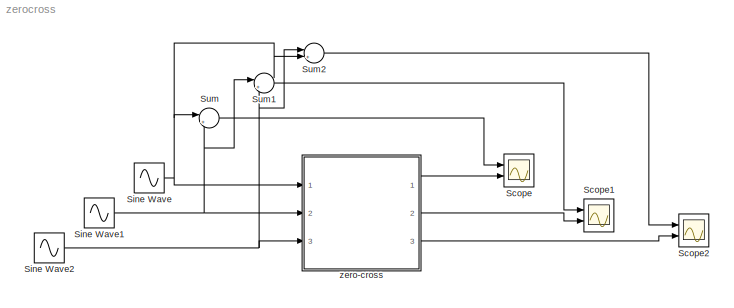
MODEL zerocross
KIND model
CONFIG AbsTol = auto
CONFIG FixedStep = auto
CONFIG MaxStep = auto
CONFIG MinStep = auto
CONFIG RelTol = 1e-3
CONFIG Solver = ode45
CONFIG SolverMode = Auto
CONFIG StartTime = 0.0
CONFIG StopTime = 10.0
BLOCK [Scope] Scope
  DataFormat = StructureWithTime
  Decimation = 1
  Floating = off
  Grid = on
  LimitDataPoints = off
  MaxDataPoints = 5000
  NumInputPorts = 2
  Ports = [2]
  SampleInput = off
  SampleTime = 0
  SaveName = ScopeData
  SaveToWorkspace = off
  TickLabels = OneTimeTick
  TimeRange = auto
  YMax = 5~5
  YMin = -5~-5
  ZoomMode = on
BLOCK [Scope] Scope1
  DataFormat = StructureWithTime
  Decimation = 1
  Floating = off
  Grid = on
  LimitDataPoints = off
  MaxDataPoints = 5000
  NumInputPorts = 2
  Ports = [2]
  SampleInput = off
  SampleTime = 0
  SaveName = ScopeData1
  SaveToWorkspace = off
  TickLabels = OneTimeTick
  TimeRange = auto
  YMax = 5~5
  YMin = -5~-5
  ZoomMode = on
BLOCK [Scope] Scope2
  DataFormat = StructureWithTime
  Decimation = 1
  Floating = off
  Grid = on
  LimitDataPoints = off
  MaxDataPoints = 5000
  NumInputPorts = 2
  Ports = [2]
  SampleInput = off
  SampleTime = 0
  SaveName = ScopeData2
  SaveToWorkspace = off
  TickLabels = OneTimeTick
  TimeRange = auto
  YMax = 5~5
  YMin = -5~-5
  ZoomMode = on
BLOCK [Sin] Sine Wave
  Amplitude = 1
  Frequency = 10
  Phase = 0
  SampleTime = 0
  VectorParams1D = on
BLOCK [Sin] Sine Wave1
  Amplitude = 1
  Frequency = 10
  Phase = 2*pi/3
  SampleTime = 0
  VectorParams1D = on
BLOCK [Sin] Sine Wave2
  Amplitude = 1
  Frequency = 10
  Phase = -2*pi/3
  SampleTime = 0
  VectorParams1D = on
BLOCK [Sum] Sum
  IconShape = round
  Inputs = |+-
  Ports = [2, 1]
  SaturateOnIntegerOverflow = on
BLOCK [Sum] Sum1
  IconShape = round
  Inputs = |+-
  Ports = [2, 1]
  SaturateOnIntegerOverflow = on
BLOCK [Sum] Sum2
  IconShape = round
  Inputs = |+-
  Ports = [2, 1]
  SaturateOnIntegerOverflow = on
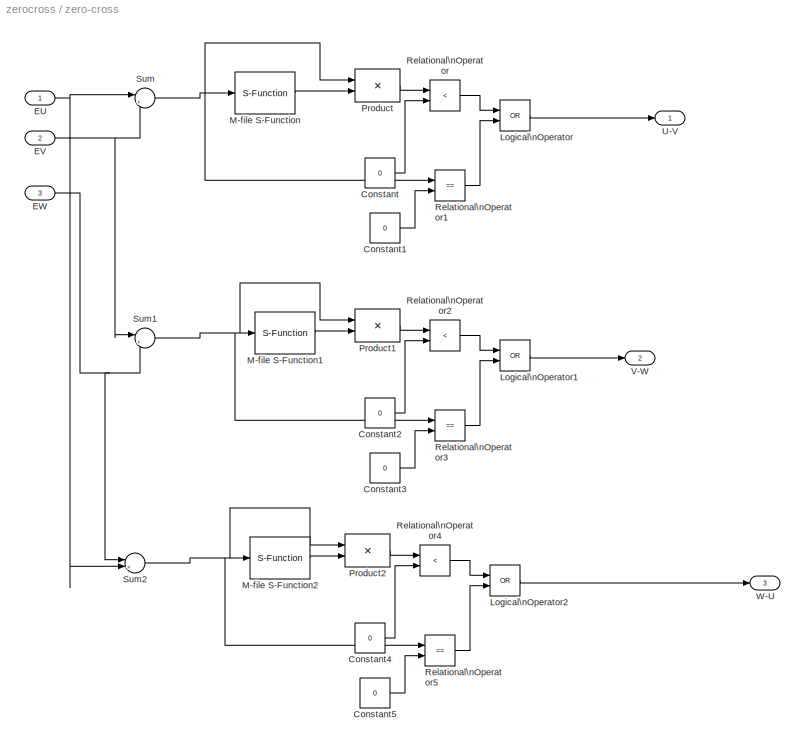
BLOCK [SubSystem] zero-cross
  MaskDescription = The block detects the zero crossing of the inputs. For accurate results use the  rising edge only.
  MaskIconFrame = on
  MaskIconOpaque = on
  MaskIconRotate = none
  MaskIconUnits = autoscale
  Ports = [3, 3]
  RTWFcnNameOpts = Auto
  RTWFileNameOpts = Auto
  RTWSystemCode = Auto
  ShowPortLabels = on
  TreatAsAtomicUnit = off
BLOCK [Constant] zero-cross/Constant
  Value = 0
  VectorParams1D = on
BLOCK [Constant] zero-cross/Constant1
  Value = 0
  VectorParams1D = on
BLOCK [Constant] zero-cross/Constant2
  Value = 0
  VectorParams1D = on
BLOCK [Constant] zero-cross/Constant3
  Value = 0
  VectorParams1D = on
BLOCK [Constant] zero-cross/Constant4
  Value = 0
  VectorParams1D = on
BLOCK [Constant] zero-cross/Constant5
  Value = 0
  VectorParams1D = on
BLOCK [Inport] zero-cross/EU
  Interpolate = on
  Port = 1
BLOCK [Inport] zero-cross/EV
  Interpolate = on
  Port = 2
BLOCK [Inport] zero-cross/EW
  Interpolate = on
  Port = 3
BLOCK [Logic] zero-cross/Logical\nOperator
  Inputs = 2
  Operator = OR
  Ports = [2, 1]
BLOCK [Logic] zero-cross/Logical\nOperator1
  Inputs = 2
  Operator = OR
  Ports = [2, 1]
BLOCK [Logic] zero-cross/Logical\nOperator2
  Inputs = 2
  Operator = OR
  Ports = [2, 1]
BLOCK [S-Function] zero-cross/M-file S-Function
  FunctionName = sfundsc2
  MaskDescription = This is a M-file S-function which demonstrates how toimplement an unit delay.
  MaskDisplay = disp('Unit delay')
  MaskIconFrame = on
  MaskIconOpaque = on
  MaskIconRotate = none
  MaskIconUnits = autoscale
  MaskType = S-function: sfun_dsc2
  PortCounts = []
  Ports = [1, 1]
  SFunctionModules = ''
BLOCK [S-Function] zero-cross/M-file S-Function1
  FunctionName = sfundsc2
  MaskDescription = This is a M-file S-function which demonstrates how toimplement an unit delay.
  MaskDisplay = disp('Unit delay')
  MaskIconFrame = on
  MaskIconOpaque = on
  MaskIconRotate = none
  MaskIconUnits = autoscale
  MaskType = S-function: sfun_dsc2
  PortCounts = []
  Ports = [1, 1]
  SFunctionModules = ''
BLOCK [S-Function] zero-cross/M-file S-Function2
  FunctionName = sfundsc2
  MaskDescription = This is a M-file S-function which demonstrates how toimplement an unit delay.
  MaskDisplay = disp('Unit delay')
  MaskIconFrame = on
  MaskIconOpaque = on
  MaskIconRotate = none
  MaskIconUnits = autoscale
  MaskType = S-function: sfun_dsc2
  PortCounts = []
  Ports = [1, 1]
  SFunctionModules = ''
BLOCK [Product] zero-cross/Product
  Inputs = 2
  Multiplication = Element-wise(.*)
  Ports = [2, 1]
  SaturateOnIntegerOverflow = on
BLOCK [Product] zero-cross/Product1
  Inputs = 2
  Multiplication = Element-wise(.*)
  Ports = [2, 1]
  SaturateOnIntegerOverflow = on
BLOCK [Product] zero-cross/Product2
  Inputs = 2
  Multiplication = Element-wise(.*)
  Ports = [2, 1]
  SaturateOnIntegerOverflow = on
BLOCK [RelationalOperator] zero-cross/Relational\nOperator
  Operator = <
BLOCK [RelationalOperator] zero-cross/Relational\nOperator1
  Operator = ==
BLOCK [RelationalOperator] zero-cross/Relational\nOperator2
  Operator = <
BLOCK [RelationalOperator] zero-cross/Relational\nOperator3
  Operator = ==
BLOCK [RelationalOperator] zero-cross/Relational\nOperator4
  Operator = <
BLOCK [RelationalOperator] zero-cross/Relational\nOperator5
  Operator = ==
BLOCK [Sum] zero-cross/Sum
  IconShape = round
  Inputs = |+-
  Ports = [2, 1]
  SaturateOnIntegerOverflow = on
BLOCK [Sum] zero-cross/Sum1
  IconShape = round
  Inputs = |+-
  Ports = [2, 1]
  SaturateOnIntegerOverflow = on
BLOCK [Sum] zero-cross/Sum2
  IconShape = round
  Inputs = |+-
  Ports = [2, 1]
  SaturateOnIntegerOverflow = on
BLOCK [Outport] zero-cross/U-V
  InitialOutput = []
  OutputWhenDisabled = held
  Port = 1
BLOCK [Outport] zero-cross/V-W
  InitialOutput = []
  OutputWhenDisabled = held
  Port = 2
BLOCK [Outport] zero-cross/W-U
  InitialOutput = []
  OutputWhenDisabled = held
  Port = 3
NET Sine Wave1:1 -> Sum1:1, Sum:2, zero-cross:2
NET Sine Wave2:1 -> Sum1:2, Sum2:1, zero-cross:3
NET Sine Wave:1 -> Sum2:2, Sum:1, zero-cross:1
LINE Sum1:1 -> Scope1:1
LINE Sum2:1 -> Scope2:1
LINE Sum:1 -> Scope:1
LINE zero-cross/Constant1:1 -> zero-cross/Relational\nOperator1:2
LINE zero-cross/Constant2:1 -> zero-cross/Relational\nOperator2:2
LINE zero-cross/Constant3:1 -> zero-cross/Relational\nOperator3:2
LINE zero-cross/Constant4:1 -> zero-cross/Relational\nOperator4:2
LINE zero-cross/Constant5:1 -> zero-cross/Relational\nOperator5:2
LINE zero-cross/Constant:1 -> zero-cross/Relational\nOperator:2
NET zero-cross/EU:1 -> zero-cross/Sum2:2, zero-cross/Sum:1
NET zero-cross/EV:1 -> zero-cross/Sum1:1, zero-cross/Sum:2
NET zero-cross/EW:1 -> zero-cross/Sum1:2, zero-cross/Sum2:1
LINE zero-cross/Logical\nOperator1:1 -> zero-cross/V-W:1
LINE zero-cross/Logical\nOperator2:1 -> zero-cross/W-U:1
LINE zero-cross/Logical\nOperator:1 -> zero-cross/U-V:1
LINE zero-cross/M-file S-Function1:1 -> zero-cross/Product1:2
LINE zero-cross/M-file S-Function2:1 -> zero-cross/Product2:2
LINE zero-cross/M-file S-Function:1 -> zero-cross/Product:2
LINE zero-cross/Product1:1 -> zero-cross/Relational\nOperator2:1
LINE zero-cross/Product2:1 -> zero-cross/Relational\nOperator4:1
LINE zero-cross/Product:1 -> zero-cross/Relational\nOperator:1
LINE zero-cross/Relational\nOperator1:1 -> zero-cross/Logical\nOperator:2
LINE zero-cross/Relational\nOperator2:1 -> zero-cross/Logical\nOperator1:1
LINE zero-cross/Relational\nOperator3:1 -> zero-cross/Logical\nOperator1:2
LINE zero-cross/Relational\nOperator4:1 -> zero-cross/Logical\nOperator2:1
LINE zero-cross/Relational\nOperator5:1 -> zero-cross/Logical\nOperator2:2
LINE zero-cross/Relational\nOperator:1 -> zero-cross/Logical\nOperator:1
NET zero-cross/Sum1:1 -> zero-cross/M-file S-Function1:1, zero-cross/Product1:1, zero-cross/Relational\nOperator3:1
NET zero-cross/Sum2:1 -> zero-cross/M-file S-Function2:1, zero-cross/Product2:1, zero-cross/Relational\nOperator5:1
NET zero-cross/Sum:1 -> zero-cross/M-file S-Function:1, zero-cross/Product:1, zero-cross/Relational\nOperator1:1
LINE zero-cross:1 -> Scope:2
LINE zero-cross:2 -> Scope1:2
LINE zero-cross:3 -> Scope2:2
note: NET lines group one-source signal fan-out (src -> all destinations, sorted); 1:1 wires keep LINE
